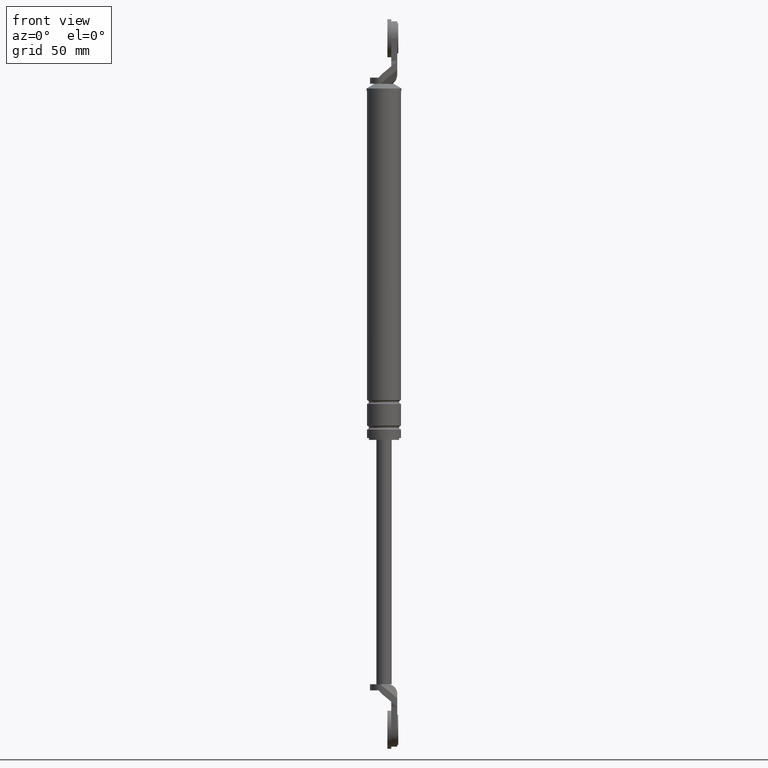
[diagram: clean part render]
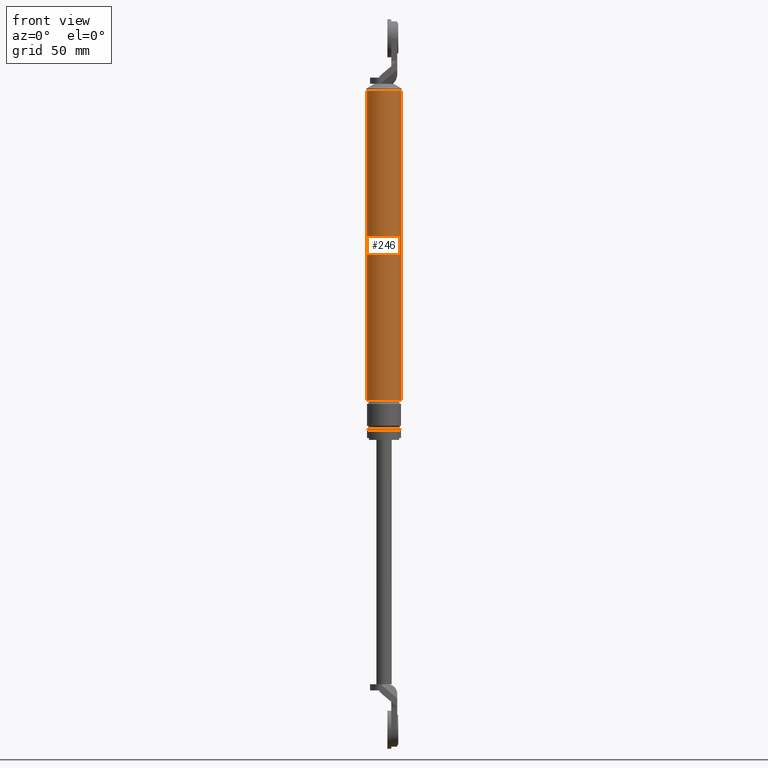
[diagram: same view with one face highlighted and labeled with its STEP entity id]
A machine part, front view. The second image highlights one B-rep face of the part: STEP entity #246.
In plain terms, the highlighted cylindrical surface (edge-blend (fillet) strip) has radius 9 mm, axis along (0, 0, 1).
Its self-contained STEP definition (entity closure, byte-faithful):
#246=ADVANCED_FACE('',(#715),#714,.T.);
#714=CYLINDRICAL_SURFACE('',#1417,9.00000000000E+000);
#715=FACE_OUTER_BOUND('',#1418,.T.);
#1414=CARTESIAN_POINT('',(0.00000000000E+000,3.58204186421E-014,0.00000000000E+000));
#1415=DIRECTION('',(-0.00000000000E+000,-0.00000000000E+000,1.00000000000E+000));
#1416=DIRECTION('',(1.00000000000E+000,-0.00000000000E+000,-0.00000000000E+000));
#1417=AXIS2_PLACEMENT_3D('',#1414,#1415,#1416);
#1418=EDGE_LOOP('',(#1962,#1963,#1964,#1965));
#1962=ORIENTED_EDGE('',*,*,#2270,.F.);
#1963=ORIENTED_EDGE('',*,*,#2267,.T.);
#1964=ORIENTED_EDGE('',*,*,#2219,.T.);
#1965=ORIENTED_EDGE('',*,*,#2269,.F.);
#2219=EDGE_CURVE('',#2771,#2772,#2773,.T.);
#2267=EDGE_CURVE('',#3086,#2771,#3087,.T.);
#2269=EDGE_CURVE('',#3093,#2772,#3100,.T.);
#2270=EDGE_CURVE('',#3086,#3093,#3106,.T.);
#2771=VERTEX_POINT('',#3940);
#2772=VERTEX_POINT('',#3941);
#2773=CIRCLE('',#3945,9.00000000000E+000);
#3086=VERTEX_POINT('',#4127);
#3087=(BOUNDED_CURVE() B_SPLINE_CURVE(1,(#4128,#4129),.UNSPECIFIED.,.F.,.F.) B_SPLINE_CURVE_WITH_KNOTS((2,2),(5.45553738250E-002,9.45444626127E-001),.UNSPECIFIED.) CURVE() GEOMETRIC_REPRESENTATION_ITEM() RATIONAL_B_SPLINE_CURVE((1.00000000000E+000,1.00000000000E+000)) REPRESENTATION_ITEM('') );
#3093=VERTEX_POINT('',#4130);
#3100=(BOUNDED_CURVE() B_SPLINE_CURVE(1,(#4135,#4136),.UNSPECIFIED.,.F.,.F.) B_SPLINE_CURVE_WITH_KNOTS((2,2),(5.45553737043E-002,9.45444626296E-001),.UNSPECIFIED.) CURVE() GEOMETRIC_REPRESENTATION_ITEM() RATIONAL_B_SPLINE_CURVE((7.50000000000E-001,7.50000000000E-001)) REPRESENTATION_ITEM('') );
#3106=CIRCLE('',#4140,9.00000000000E+000);
#3940=CARTESIAN_POINT('',(9.00000000000E+000,3.61192557345E-014,8.52999850000E+001));
#3941=CARTESIAN_POINT('',(-9.00000000000E+000,3.58204186421E-014,8.52999850000E+001));
#3942=CARTESIAN_POINT('',(0.00000000000E+000,3.58204186421E-014,8.52999850000E+001));
#3943=DIRECTION('',(-0.00000000000E+000,0.00000000000E+000,-1.00000000000E+000));
#3944=DIRECTION('',(-1.00000000000E+000,-1.22460635382E-016,0.00000000000E+000));
#3945=AXIS2_PLACEMENT_3D('',#3942,#3943,#3944);
#4127=CARTESIAN_POINT('',(9.00000000000E+000,3.61192557345E-014,-7.80000150000E+001));
#4128=CARTESIAN_POINT('',(9.00000000000E+000,3.58204186421E-014,-7.80000149779E+001));
#4129=CARTESIAN_POINT('',(9.00000000000E+000,3.58204186421E-014,8.52999849690E+001));
#4130=CARTESIAN_POINT('',(-9.00000000000E+000,3.58204186421E-014,-7.80000150000E+001));
#4135=CARTESIAN_POINT('',(-9.00000000000E+000,3.52310773148E-014,-7.80000150000E+001));
#4136=CARTESIAN_POINT('',(-9.00000000000E+000,3.52310773148E-014,8.52999850000E+001));
#4137=CARTESIAN_POINT('',(0.00000000000E+000,3.58204186421E-014,-7.80000150000E+001));
#4138=DIRECTION('',(-0.00000000000E+000,0.00000000000E+000,-1.00000000000E+000));
#4139=DIRECTION('',(-1.00000000000E+000,-1.22460635382E-016,0.00000000000E+000));
#4140=AXIS2_PLACEMENT_3D('',#4137,#4138,#4139);